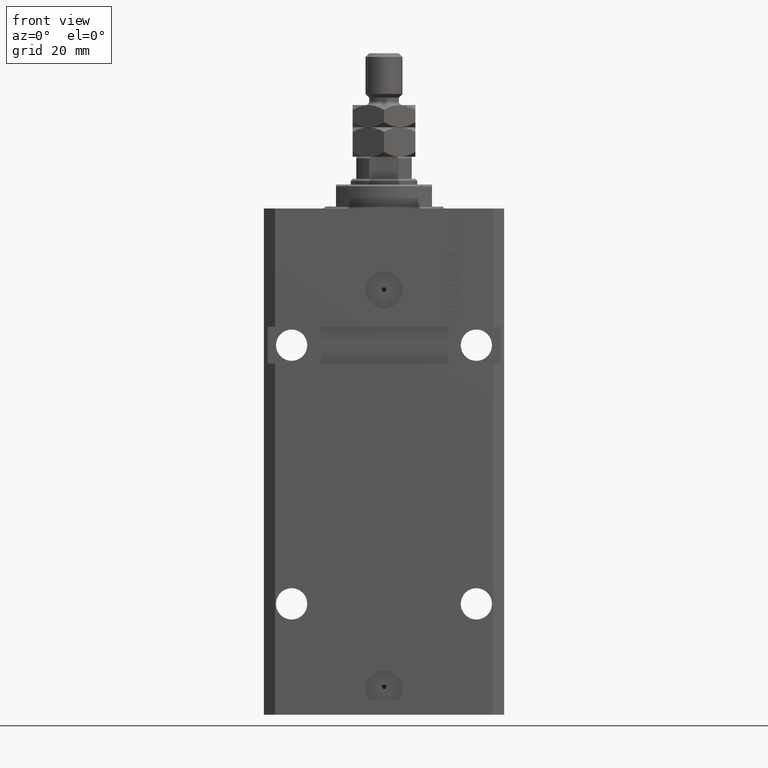
[diagram: clean part render]
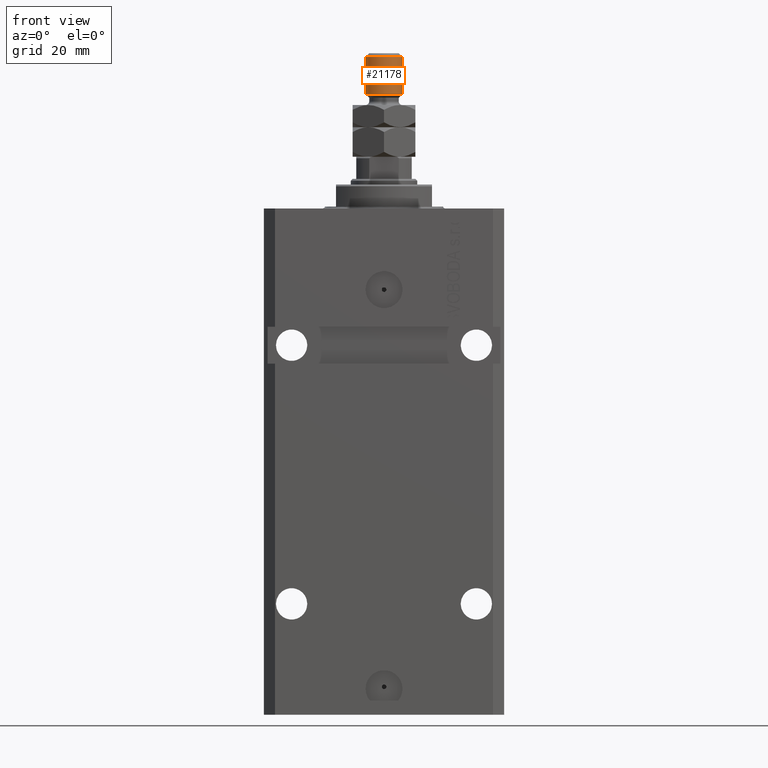
[diagram: same view with one face highlighted and labeled with its STEP entity id]
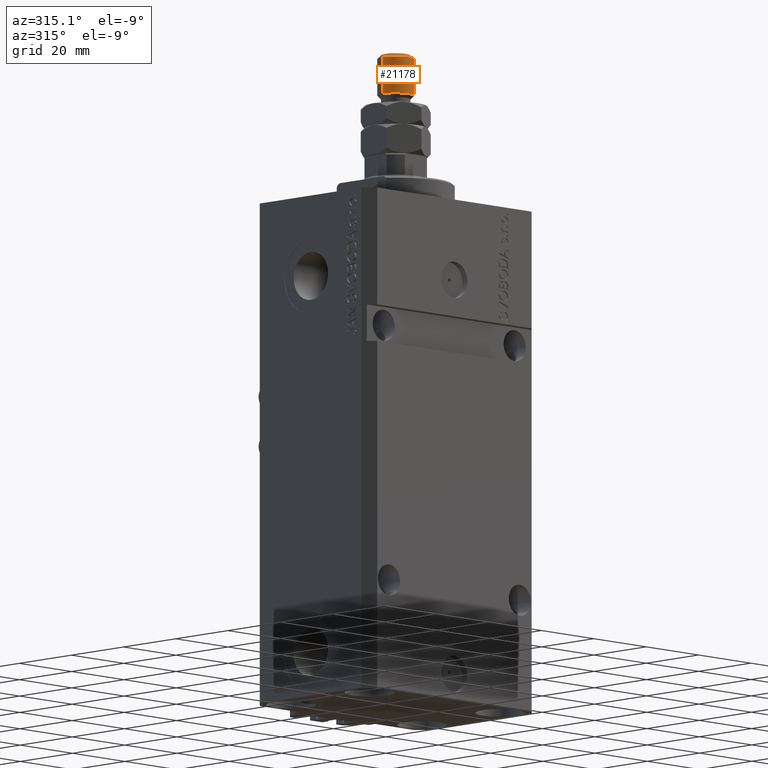
[diagram: same view with one face highlighted and labeled with its STEP entity id]
A machine part, front view. The second image highlights one B-rep face of the part: STEP entity #21178.
A second angle (auxiliary view) of the same face is appended — the face is thin or edge-on in the first view.
In plain terms, the highlighted cylindrical surface (edge-blend (fillet) strip) has radius 5 mm, axis along (-0, -0, -1).
Its self-contained STEP definition (entity closure, byte-faithful):
#5108 = EDGE_CURVE ( 'NONE', #12609, #18701, #8271, .T. ) ;
#6931 = CARTESIAN_POINT ( 'NONE',  ( 5.000000000000000000, 6.123233995736766282E-16, 28.00000000000000000 ) ) ;
#7280 = CARTESIAN_POINT ( 'NONE',  ( -5.000000000000000000, 0.000000000000000000, 28.00000000000000000 ) ) ;
#8081 = ORIENTED_EDGE ( 'NONE', *, *, #10438, .T. ) ;
#8177 = DIRECTION ( 'NONE',  ( 1.000000000000000000, 0.000000000000000000, 0.000000000000000000 ) ) ;
#8271 = LINE ( 'NONE', #7280, #9323 ) ;
#9323 = VECTOR ( 'NONE', #15496, 1000.000000000000000 ) ;
#10438 = EDGE_CURVE ( 'NONE', #39987, #12609, #26218, .T. ) ;
#10678 = LINE ( 'NONE', #6931, #10812 ) ;
#10812 = VECTOR ( 'NONE', #33562, 1000.000000000000000 ) ;
#12120 = DIRECTION ( 'NONE',  ( 0.000000000000000000, 0.000000000000000000, -1.000000000000000000 ) ) ;
#12609 = VERTEX_POINT ( 'NONE', #32907 ) ;
#13741 = CARTESIAN_POINT ( 'NONE',  ( 5.000000000000000000, 6.123233995736766282E-16, 26.99999999999998934 ) ) ;
#13981 = CYLINDRICAL_SURFACE ( 'NONE', #34430, 5.000000000000000000 ) ;
#15360 = CARTESIAN_POINT ( 'NONE',  ( 0.000000000000000000, 0.000000000000000000, 26.99999999999998934 ) ) ;
#15496 = DIRECTION ( 'NONE',  ( -0.000000000000000000, -0.000000000000000000, -1.000000000000000000 ) ) ;
#18298 = AXIS2_PLACEMENT_3D ( 'NONE', #15360, #12120, #27285 ) ;
#18701 = VERTEX_POINT ( 'NONE', #30414 ) ;
#21178 = ADVANCED_FACE ( 'NONE', ( #43874 ), #13981, .T. ) ;
#22996 = ORIENTED_EDGE ( 'NONE', *, *, #40611, .T. ) ;
#24917 = DIRECTION ( 'NONE',  ( -1.000000000000000000, 0.000000000000000000, 0.000000000000000000 ) ) ;
#25010 = ORIENTED_EDGE ( 'NONE', *, *, #5108, .T. ) ;
#25211 = AXIS2_PLACEMENT_3D ( 'NONE', #42297, #30568, #8177 ) ;
#26218 = CIRCLE ( 'NONE', #18298, 5.000000000000000000 ) ;
#27285 = DIRECTION ( 'NONE',  ( 1.000000000000000000, 0.000000000000000000, 0.000000000000000000 ) ) ;
#27389 = CARTESIAN_POINT ( 'NONE',  ( 5.000000000000000000, 6.123233995736766282E-16, 17.00000000000000355 ) ) ;
#29143 = CARTESIAN_POINT ( 'NONE',  ( 0.000000000000000000, 0.000000000000000000, 28.00000000000000000 ) ) ;
#30279 = VERTEX_POINT ( 'NONE', #27389 ) ;
#30414 = CARTESIAN_POINT ( 'NONE',  ( -5.000000000000000000, 0.000000000000000000, 17.00000000000000355 ) ) ;
#30568 = DIRECTION ( 'NONE',  ( -0.000000000000000000, -0.000000000000000000, 1.000000000000000000 ) ) ;
#30704 = ORIENTED_EDGE ( 'NONE', *, *, #32980, .F. ) ;
#32647 = DIRECTION ( 'NONE',  ( -0.000000000000000000, -0.000000000000000000, -1.000000000000000000 ) ) ;
#32907 = CARTESIAN_POINT ( 'NONE',  ( -5.000000000000000000, 0.000000000000000000, 26.99999999999998934 ) ) ;
#32980 = EDGE_CURVE ( 'NONE', #39987, #30279, #10678, .T. ) ;
#33562 = DIRECTION ( 'NONE',  ( -0.000000000000000000, -0.000000000000000000, -1.000000000000000000 ) ) ;
#34430 = AXIS2_PLACEMENT_3D ( 'NONE', #29143, #32647, #24917 ) ;
#34815 = EDGE_LOOP ( 'NONE', ( #30704, #8081, #25010, #22996 ) ) ;
#39987 = VERTEX_POINT ( 'NONE', #13741 ) ;
#40611 = EDGE_CURVE ( 'NONE', #18701, #30279, #46726, .T. ) ;
#42297 = CARTESIAN_POINT ( 'NONE',  ( 0.000000000000000000, 0.000000000000000000, 17.00000000000000355 ) ) ;
#43874 = FACE_OUTER_BOUND ( 'NONE', #34815, .T. ) ;
#46726 = CIRCLE ( 'NONE', #25211, 5.000000000000000000 ) ;